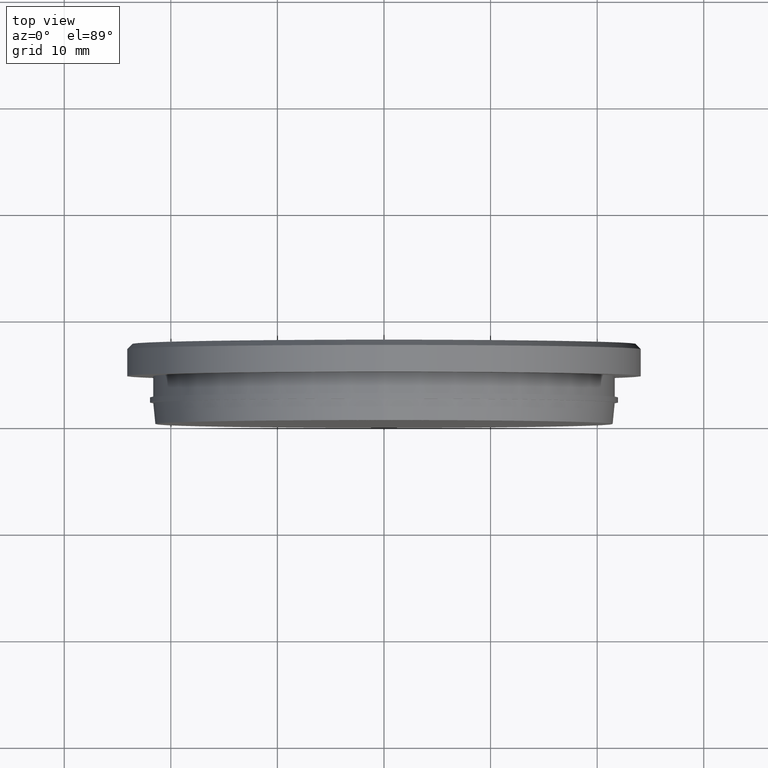
[diagram: clean part render]
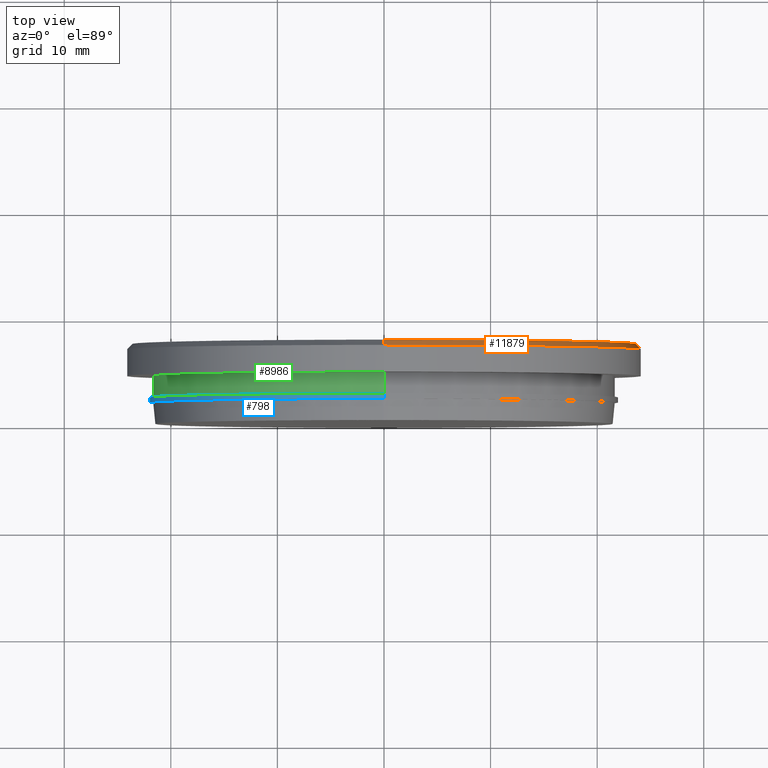
[diagram: same view with three faces highlighted in distinct colors, each labeled with its STEP entity id]
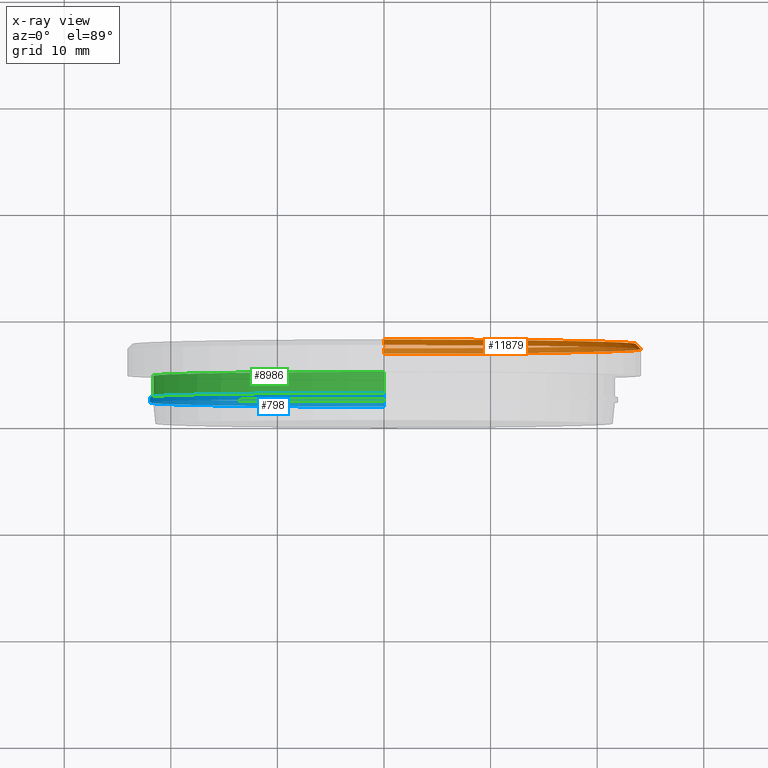
[diagram: x-ray of the same camera — body ghosted, the three highlighted faces saturated]
A machine part, top view with three faces highlighted in distinct colors.
The next image is the same camera in x-ray (body ghosted, the three faces saturated) — at least one of them is partly hidden behind the body in this view.
Their STEP definitions:

[orange] entity #11879 — the highlighted conical surface has half-angle 45 deg.
#221 = LINE ( 'NONE', #15220, #6006 ) ;
#793 = ORIENTED_EDGE ( 'NONE', *, *, #5602, .F. ) ;
#1048 = EDGE_CURVE ( 'NONE', #10727, #2028, #12807, .T. ) ;
#1198 = DIRECTION ( 'NONE',  ( -0.0000000000000000000, 1.000000000000000000, -0.0000000000000000000 ) ) ;
#1318 = ORIENTED_EDGE ( 'NONE', *, *, #9087, .F. ) ;
#1427 = CARTESIAN_POINT ( 'NONE',  ( 0.0000000000000000000, 7.500000000000000000, 0.0000000000000000000 ) ) ;
#1538 = CIRCLE ( 'NONE', #4349, 24.15000000000000200 ) ;
#2028 = VERTEX_POINT ( 'NONE', #10420 ) ;
#2452 = DIRECTION ( 'NONE',  ( 0.0000000000000000000, 0.0000000000000000000, -1.000000000000000000 ) ) ;
#3053 = EDGE_CURVE ( 'NONE', #12594, #5537, #221, .T. ) ;
#3284 = VECTOR ( 'NONE', #11730, 1000.000000000000000 ) ;
#3332 = AXIS2_PLACEMENT_3D ( 'NONE', #1427, #3678, #2452 ) ;
#3372 = DIRECTION ( 'NONE',  ( 0.0000000000000000000, -1.000000000000000000, 0.0000000000000000000 ) ) ;
#3678 = DIRECTION ( 'NONE',  ( 0.0000000000000000000, -1.000000000000000000, 0.0000000000000000000 ) ) ;
#4030 = CARTESIAN_POINT ( 'NONE',  ( 2.957522019940858300E-015, 7.000000000000013300, -24.15000000000000200 ) ) ;
#4349 = AXIS2_PLACEMENT_3D ( 'NONE', #4452, #3372, #12989 ) ;
#4452 = CARTESIAN_POINT ( 'NONE',  ( 0.0000000000000000000, 7.000000000000013300, 0.0000000000000000000 ) ) ;
#4565 = FACE_OUTER_BOUND ( 'NONE', #4744, .T. ) ;
#4744 = EDGE_LOOP ( 'NONE', ( #1318, #14912, #793, #10347 ) ) ;
#5537 = VERTEX_POINT ( 'NONE', #4030 ) ;
#5575 = CARTESIAN_POINT ( 'NONE',  ( 2.896289679983493100E-015, 7.500000000000000000, 23.65000000000002300 ) ) ;
#5602 = EDGE_CURVE ( 'NONE', #5537, #2028, #1538, .T. ) ;
#6006 = VECTOR ( 'NONE', #8039, 1000.000000000000000 ) ;
#7306 = CARTESIAN_POINT ( 'NONE',  ( 0.0000000000000000000, 7.500000000000000000, 0.0000000000000000000 ) ) ;
#8039 = DIRECTION ( 'NONE',  ( 0.0000000000000000000, -0.7071067811865524600, -0.7071067811865426900 ) ) ;
#8694 = CIRCLE ( 'NONE', #11230, 23.65000000000002300 ) ;
#9087 = EDGE_CURVE ( 'NONE', #10727, #12594, #8694, .T. ) ;
#9472 = DIRECTION ( 'NONE',  ( 0.0000000000000000000, 0.0000000000000000000, 1.000000000000000000 ) ) ;
#10347 = ORIENTED_EDGE ( 'NONE', *, *, #3053, .F. ) ;
#10420 = CARTESIAN_POINT ( 'NONE',  ( 0.0000000000000000000, 7.000000000000013300, 24.15000000000000200 ) ) ;
#10727 = VERTEX_POINT ( 'NONE', #14968 ) ;
#11230 = AXIS2_PLACEMENT_3D ( 'NONE', #7306, #1198, #9472 ) ;
#11730 = DIRECTION ( 'NONE',  ( 8.659560562354874900E-017, -0.7071067811865524600, 0.7071067811865426900 ) ) ;
#11879 = ADVANCED_FACE ( 'NONE', ( #4565 ), #12596, .T. ) ;
#12594 = VERTEX_POINT ( 'NONE', #14411 ) ;
#12596 = CONICAL_SURFACE ( 'NONE', #3332, 23.65000000000002300, 0.7853981633974415100 ) ;
#12807 = LINE ( 'NONE', #5575, #3284 ) ;
#12989 = DIRECTION ( 'NONE',  ( 0.0000000000000000000, 0.0000000000000000000, 1.000000000000000000 ) ) ;
#14411 = CARTESIAN_POINT ( 'NONE',  ( 0.0000000000000000000, 7.500000000000000000, -23.65000000000002300 ) ) ;
#14912 = ORIENTED_EDGE ( 'NONE', *, *, #1048, .T. ) ;
#14968 = CARTESIAN_POINT ( 'NONE',  ( 2.926905849962175700E-015, 7.500000000000000000, 23.65000000000002300 ) ) ;
#15220 = CARTESIAN_POINT ( 'NONE',  ( 0.0000000000000000000, 7.500000000000000000, -23.65000000000002300 ) ) ;

[blue] entity #798 — the highlighted cylindrical surface (partial cylindrical patch) has radius 21.95 mm, axis along (-0, -1, -0).
#396 = DIRECTION ( 'NONE',  ( -0.0000000000000000000, -1.000000000000000000, -0.0000000000000000000 ) ) ;
#442 = LINE ( 'NONE', #6458, #1737 ) ;
#590 = EDGE_CURVE ( 'NONE', #12941, #5129, #14894, .T. ) ;
#798 = ADVANCED_FACE ( 'NONE', ( #14878 ), #1616, .T. ) ;
#1072 = VERTEX_POINT ( 'NONE', #5709 ) ;
#1616 = CYLINDRICAL_SURFACE ( 'NONE', #4688, 21.95000000000000300 ) ;
#1737 = VECTOR ( 'NONE', #396, 1000.000000000000000 ) ;
#1926 = CARTESIAN_POINT ( 'NONE',  ( 0.0000000000000000000, 2.500000000000000000, -21.95000000000000300 ) ) ;
#4018 = CIRCLE ( 'NONE', #10822, 21.95000000000000300 ) ;
#4345 = DIRECTION ( 'NONE',  ( 0.0000000000000000000, 1.000000000000000000, 0.0000000000000000000 ) ) ;
#4688 = AXIS2_PLACEMENT_3D ( 'NONE', #6083, #9564, #4735 ) ;
#4735 = DIRECTION ( 'NONE',  ( 0.0000000000000000000, 0.0000000000000000000, -1.000000000000000000 ) ) ;
#4757 = CARTESIAN_POINT ( 'NONE',  ( 2.688099724128440900E-015, 2.000000000000000000, 21.95000000000000300 ) ) ;
#4877 = VERTEX_POINT ( 'NONE', #4757 ) ;
#5129 = VERTEX_POINT ( 'NONE', #7168 ) ;
#5709 = CARTESIAN_POINT ( 'NONE',  ( 2.688099724128440900E-015, 2.500000000000000000, 21.95000000000000300 ) ) ;
#6083 = CARTESIAN_POINT ( 'NONE',  ( 0.0000000000000000000, 2.500000000000000000, 0.0000000000000000000 ) ) ;
#6458 = CARTESIAN_POINT ( 'NONE',  ( 2.688099724128440900E-015, 2.500000000000000000, 21.95000000000000300 ) ) ;
#6957 = AXIS2_PLACEMENT_3D ( 'NONE', #11274, #4345, #10272 ) ;
#7168 = CARTESIAN_POINT ( 'NONE',  ( 0.0000000000000000000, 2.000000000000000000, -21.95000000000000300 ) ) ;
#7187 = EDGE_LOOP ( 'NONE', ( #12983, #13211, #9409, #9537 ) ) ;
#7922 = DIRECTION ( 'NONE',  ( -0.0000000000000000000, -1.000000000000000000, -0.0000000000000000000 ) ) ;
#8512 = VECTOR ( 'NONE', #7922, 1000.000000000000000 ) ;
#9372 = CIRCLE ( 'NONE', #6957, 21.95000000000000300 ) ;
#9409 = ORIENTED_EDGE ( 'NONE', *, *, #590, .T. ) ;
#9537 = ORIENTED_EDGE ( 'NONE', *, *, #10366, .T. ) ;
#9564 = DIRECTION ( 'NONE',  ( -0.0000000000000000000, -1.000000000000000000, -0.0000000000000000000 ) ) ;
#10272 = DIRECTION ( 'NONE',  ( 0.0000000000000000000, 0.0000000000000000000, 1.000000000000000000 ) ) ;
#10366 = EDGE_CURVE ( 'NONE', #5129, #4877, #4018, .T. ) ;
#10822 = AXIS2_PLACEMENT_3D ( 'NONE', #13970, #13863, #15044 ) ;
#11274 = CARTESIAN_POINT ( 'NONE',  ( 0.0000000000000000000, 2.500000000000000000, 0.0000000000000000000 ) ) ;
#11429 = CARTESIAN_POINT ( 'NONE',  ( 0.0000000000000000000, 2.500000000000000000, -21.95000000000000300 ) ) ;
#12941 = VERTEX_POINT ( 'NONE', #1926 ) ;
#12983 = ORIENTED_EDGE ( 'NONE', *, *, #14095, .F. ) ;
#13211 = ORIENTED_EDGE ( 'NONE', *, *, #14305, .F. ) ;
#13863 = DIRECTION ( 'NONE',  ( 0.0000000000000000000, 1.000000000000000000, 0.0000000000000000000 ) ) ;
#13970 = CARTESIAN_POINT ( 'NONE',  ( 0.0000000000000000000, 2.000000000000000000, 0.0000000000000000000 ) ) ;
#14095 = EDGE_CURVE ( 'NONE', #1072, #4877, #442, .T. ) ;
#14305 = EDGE_CURVE ( 'NONE', #12941, #1072, #9372, .T. ) ;
#14878 = FACE_OUTER_BOUND ( 'NONE', #7187, .T. ) ;
#14894 = LINE ( 'NONE', #11429, #8512 ) ;
#15044 = DIRECTION ( 'NONE',  ( 0.0000000000000000000, 0.0000000000000000000, 1.000000000000000000 ) ) ;

[green] entity #8986 — the highlighted cylindrical surface (partial cylindrical patch) has radius 21.65 mm, axis along (-0, -1, -0).
#561 = CIRCLE ( 'NONE', #8197, 21.65000000000000600 ) ;
#628 = LINE ( 'NONE', #3947, #3401 ) ;
#992 = VECTOR ( 'NONE', #6200, 1000.000000000000000 ) ;
#1092 = VERTEX_POINT ( 'NONE', #10649 ) ;
#3401 = VECTOR ( 'NONE', #12506, 1000.000000000000000 ) ;
#3947 = CARTESIAN_POINT ( 'NONE',  ( 2.651360320154020500E-015, 4.500000000000000900, 21.65000000000000600 ) ) ;
#4276 = VERTEX_POINT ( 'NONE', #9807 ) ;
#4617 = FACE_OUTER_BOUND ( 'NONE', #13282, .T. ) ;
#4718 = LINE ( 'NONE', #11059, #992 ) ;
#5287 = DIRECTION ( 'NONE',  ( 0.0000000000000000000, 0.0000000000000000000, 1.000000000000000000 ) ) ;
#5317 = CIRCLE ( 'NONE', #6036, 21.65000000000000600 ) ;
#5795 = ORIENTED_EDGE ( 'NONE', *, *, #14648, .F. ) ;
#6036 = AXIS2_PLACEMENT_3D ( 'NONE', #7532, #11347, #5287 ) ;
#6182 = CARTESIAN_POINT ( 'NONE',  ( 0.0000000000000000000, 4.500000000000000900, 0.0000000000000000000 ) ) ;
#6200 = DIRECTION ( 'NONE',  ( -0.0000000000000000000, -1.000000000000000000, -0.0000000000000000000 ) ) ;
#6349 = DIRECTION ( 'NONE',  ( 0.0000000000000000000, 0.0000000000000000000, -1.000000000000000000 ) ) ;
#6944 = DIRECTION ( 'NONE',  ( 0.0000000000000000000, 1.000000000000000000, 0.0000000000000000000 ) ) ;
#7395 = DIRECTION ( 'NONE',  ( -0.0000000000000000000, -1.000000000000000000, -0.0000000000000000000 ) ) ;
#7413 = VERTEX_POINT ( 'NONE', #8431 ) ;
#7532 = CARTESIAN_POINT ( 'NONE',  ( 0.0000000000000000000, 4.500000000000000900, 0.0000000000000000000 ) ) ;
#8059 = EDGE_CURVE ( 'NONE', #4276, #13382, #561, .T. ) ;
#8197 = AXIS2_PLACEMENT_3D ( 'NONE', #12734, #6944, #15295 ) ;
#8320 = ORIENTED_EDGE ( 'NONE', *, *, #14877, .T. ) ;
#8431 = CARTESIAN_POINT ( 'NONE',  ( 2.651360320154020500E-015, 4.500000000000000900, 21.65000000000000600 ) ) ;
#8986 = ADVANCED_FACE ( 'NONE', ( #4617 ), #13793, .T. ) ;
#9807 = CARTESIAN_POINT ( 'NONE',  ( 0.0000000000000000000, 2.500000000000000000, -21.65000000000000600 ) ) ;
#10649 = CARTESIAN_POINT ( 'NONE',  ( 0.0000000000000000000, 4.500000000000000900, -21.65000000000000600 ) ) ;
#11059 = CARTESIAN_POINT ( 'NONE',  ( 0.0000000000000000000, 4.500000000000000900, -21.65000000000000600 ) ) ;
#11347 = DIRECTION ( 'NONE',  ( 0.0000000000000000000, 1.000000000000000000, 0.0000000000000000000 ) ) ;
#11583 = ORIENTED_EDGE ( 'NONE', *, *, #8059, .T. ) ;
#11745 = AXIS2_PLACEMENT_3D ( 'NONE', #6182, #7395, #6349 ) ;
#12142 = EDGE_CURVE ( 'NONE', #1092, #7413, #5317, .T. ) ;
#12401 = ORIENTED_EDGE ( 'NONE', *, *, #12142, .F. ) ;
#12506 = DIRECTION ( 'NONE',  ( -0.0000000000000000000, -1.000000000000000000, -0.0000000000000000000 ) ) ;
#12734 = CARTESIAN_POINT ( 'NONE',  ( 0.0000000000000000000, 2.500000000000000000, 0.0000000000000000000 ) ) ;
#13282 = EDGE_LOOP ( 'NONE', ( #5795, #12401, #8320, #11583 ) ) ;
#13382 = VERTEX_POINT ( 'NONE', #14361 ) ;
#13793 = CYLINDRICAL_SURFACE ( 'NONE', #11745, 21.65000000000000600 ) ;
#14361 = CARTESIAN_POINT ( 'NONE',  ( 2.651360320154020500E-015, 2.500000000000000000, 21.65000000000000600 ) ) ;
#14648 = EDGE_CURVE ( 'NONE', #7413, #13382, #628, .T. ) ;
#14877 = EDGE_CURVE ( 'NONE', #1092, #4276, #4718, .T. ) ;
#15295 = DIRECTION ( 'NONE',  ( 0.0000000000000000000, 0.0000000000000000000, 1.000000000000000000 ) ) ;